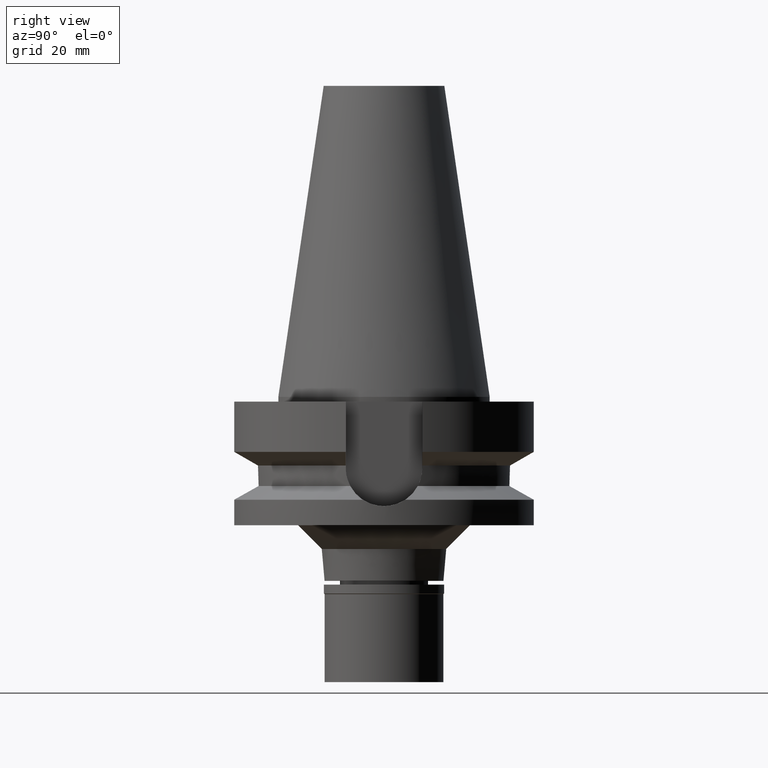
[diagram: clean part render]
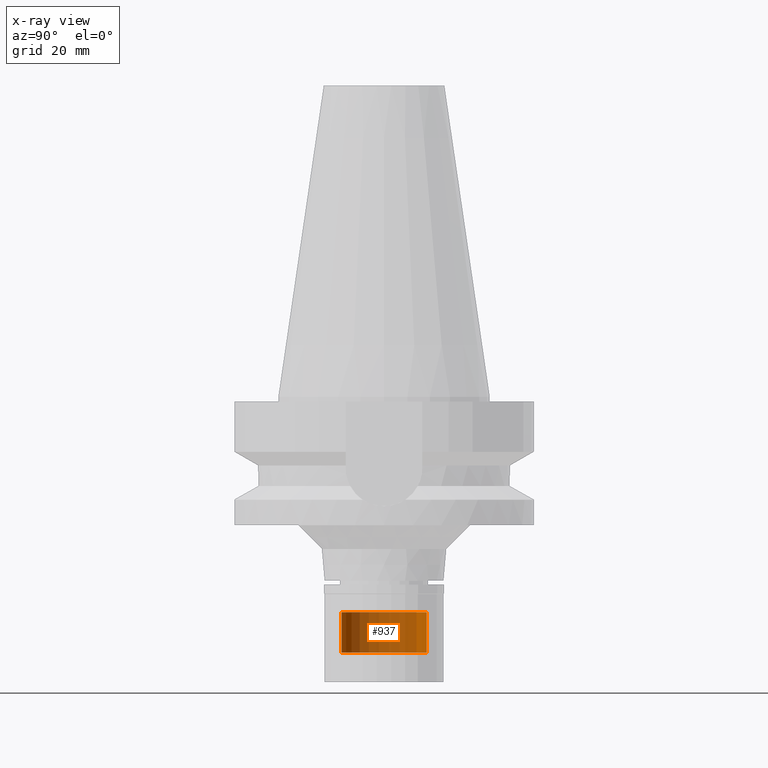
[diagram: x-ray — body ghosted, one internal face saturated and labeled with its STEP entity id]
A machine part, right view, then the same camera in x-ray: the body is ghosted and one INTERNAL B-rep face — a face not visible from any outside direction — is saturated and labeled: STEP entity #937.
In plain terms, the highlighted cylindrical surface (partial cylindrical patch) has radius 9 mm, axis along (0, 0, -1).
Its self-contained STEP definition (entity closure, byte-faithful):
#49 = CARTESIAN_POINT ( 'NONE',  ( 0.0000000000000000000, -9.000000000000000000, -53.79999999999999716 ) ) ;
#124 = CARTESIAN_POINT ( 'NONE',  ( 0.0000000000000000000, 2.098554755019000113E-14, -53.79999999999999716 ) ) ;
#182 = AXIS2_PLACEMENT_3D ( 'NONE', #124, #323, #2947 ) ;
#268 = CARTESIAN_POINT ( 'NONE',  ( 0.0000000000000000000, -9.000000000000000000, -45.29999999999999716 ) ) ;
#291 = CARTESIAN_POINT ( 'NONE',  ( 0.0000000000000000000, 9.000000000000000000, -53.79999999999999716 ) ) ;
#323 = DIRECTION ( 'NONE',  ( 0.0000000000000000000, 0.0000000000000000000, 1.000000000000000000 ) ) ;
#456 = EDGE_CURVE ( 'NONE', #1540, #2927, #2645, .T. ) ;
#618 = CARTESIAN_POINT ( 'NONE',  ( 0.0000000000000000000, 2.098554755019000113E-14, -45.29999999999999716 ) ) ;
#708 = CARTESIAN_POINT ( 'NONE',  ( 0.0000000000000000000, 9.000000000000000000, -45.29999999999999716 ) ) ;
#738 = VECTOR ( 'NONE', #3021, 1000.000000000000000 ) ;
#752 = VERTEX_POINT ( 'NONE', #1222 ) ;
#834 = ORIENTED_EDGE ( 'NONE', *, *, #456, .T. ) ;
#936 = ORIENTED_EDGE ( 'NONE', *, *, #2541, .T. ) ;
#937 = ADVANCED_FACE ( 'NONE', ( #1690 ), #2042, .T. ) ;
#1129 = VECTOR ( 'NONE', #1208, 1000.000000000000000 ) ;
#1208 = DIRECTION ( 'NONE',  ( 0.0000000000000000000, 0.0000000000000000000, -1.000000000000000000 ) ) ;
#1222 = CARTESIAN_POINT ( 'NONE',  ( 0.0000000000000000000, 9.000000000000000000, -45.29999999999999716 ) ) ;
#1328 = CIRCLE ( 'NONE', #3056, 9.000000000000000000 ) ;
#1540 = VERTEX_POINT ( 'NONE', #291 ) ;
#1690 = FACE_OUTER_BOUND ( 'NONE', #2123, .T. ) ;
#1866 = AXIS2_PLACEMENT_3D ( 'NONE', #2266, #2227, #2995 ) ;
#2003 = CARTESIAN_POINT ( 'NONE',  ( 0.0000000000000000000, -9.000000000000000000, -45.29999999999999716 ) ) ;
#2042 = CYLINDRICAL_SURFACE ( 'NONE', #1866, 9.000000000000000000 ) ;
#2123 = EDGE_LOOP ( 'NONE', ( #834, #2414, #936, #2996 ) ) ;
#2227 = DIRECTION ( 'NONE',  ( 0.0000000000000000000, 0.0000000000000000000, -1.000000000000000000 ) ) ;
#2245 = DIRECTION ( 'NONE',  ( 0.0000000000000000000, 0.0000000000000000000, -1.000000000000000000 ) ) ;
#2266 = CARTESIAN_POINT ( 'NONE',  ( 0.0000000000000000000, 2.098554755019000113E-14, 71.36000000000001364 ) ) ;
#2332 = LINE ( 'NONE', #708, #738 ) ;
#2379 = EDGE_CURVE ( 'NONE', #2639, #2927, #2390, .T. ) ;
#2390 = LINE ( 'NONE', #268, #1129 ) ;
#2414 = ORIENTED_EDGE ( 'NONE', *, *, #2379, .F. ) ;
#2541 = EDGE_CURVE ( 'NONE', #2639, #752, #1328, .T. ) ;
#2639 = VERTEX_POINT ( 'NONE', #2003 ) ;
#2645 = CIRCLE ( 'NONE', #182, 9.000000000000000000 ) ;
#2700 = EDGE_CURVE ( 'NONE', #752, #1540, #2332, .T. ) ;
#2723 = DIRECTION ( 'NONE',  ( 0.0000000000000000000, -1.000000000000000000, 0.0000000000000000000 ) ) ;
#2927 = VERTEX_POINT ( 'NONE', #49 ) ;
#2947 = DIRECTION ( 'NONE',  ( 0.0000000000000000000, 1.000000000000000000, 0.0000000000000000000 ) ) ;
#2995 = DIRECTION ( 'NONE',  ( 0.0000000000000000000, -1.000000000000000000, 0.0000000000000000000 ) ) ;
#2996 = ORIENTED_EDGE ( 'NONE', *, *, #2700, .T. ) ;
#3021 = DIRECTION ( 'NONE',  ( 0.0000000000000000000, 0.0000000000000000000, -1.000000000000000000 ) ) ;
#3056 = AXIS2_PLACEMENT_3D ( 'NONE', #618, #2245, #2723 ) ;